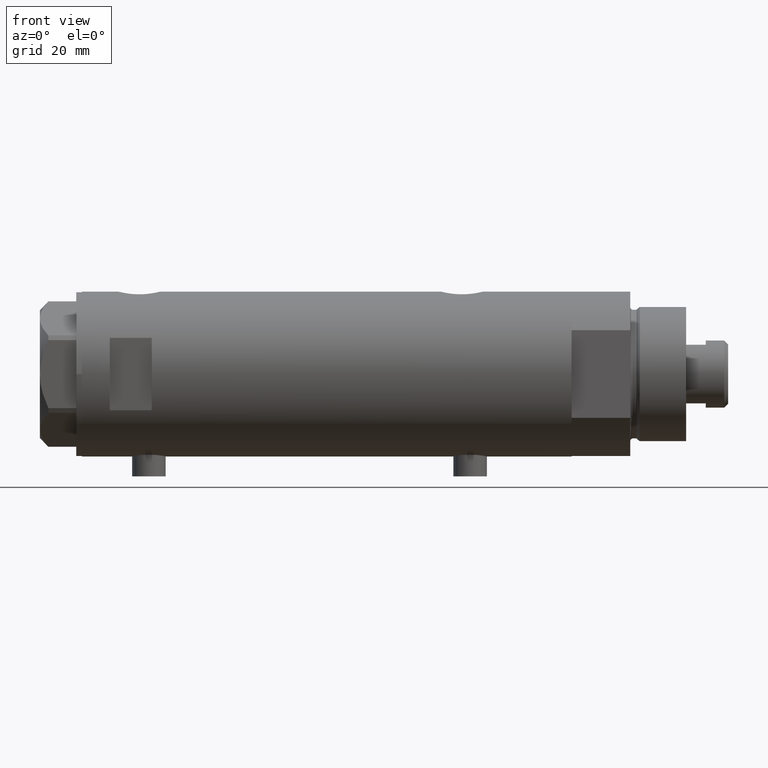
[diagram: clean part render]
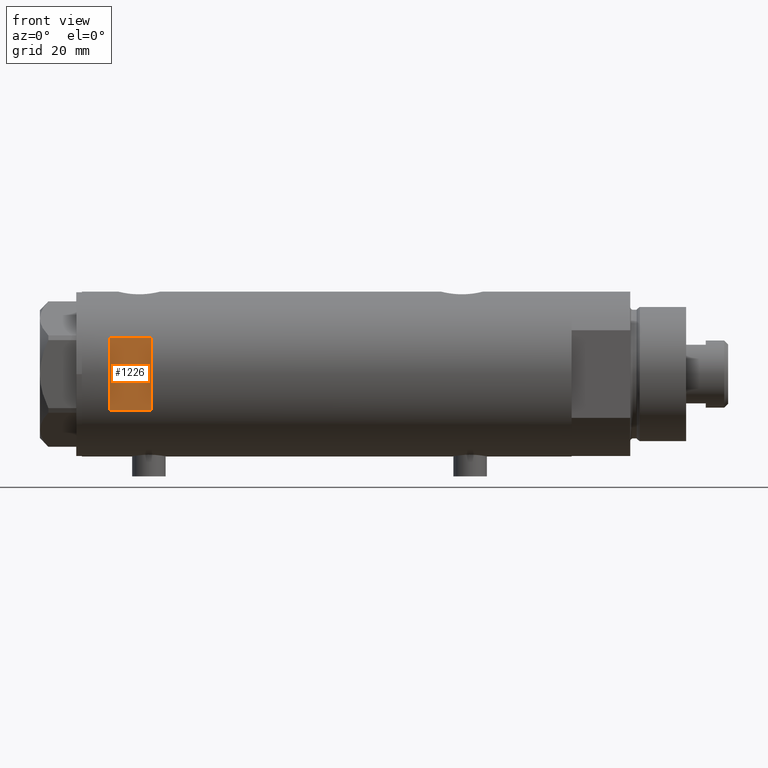
[diagram: same view with one face highlighted and labeled with its STEP entity id]
A machine part, front view. The second image highlights one B-rep face of the part: STEP entity #1226.
In plain terms, the highlighted planar face has unit normal (-0, 1, 0).
Its self-contained STEP definition (entity closure, byte-faithful):
#28 = ORIENTED_EDGE ( 'NONE', *, *, #4003, .T. ) ;
#686 = VECTOR ( 'NONE', #760, 1000.000000000000000 ) ;
#760 = DIRECTION ( 'NONE',  ( 1.000000000000000000, -0.000000000000000000, -0.000000000000000000 ) ) ;
#1001 = LINE ( 'NONE', #3743, #3986 ) ;
#1045 = DIRECTION ( 'NONE',  ( -0.000000000000000000, -0.000000000000000000, -1.000000000000000000 ) ) ;
#1226 = ADVANCED_FACE ( 'NONE', ( #2721 ), #1680, .F. ) ;
#1248 = EDGE_CURVE ( 'NONE', #2840, #2233, #1001, .T. ) ;
#1468 = VERTEX_POINT ( 'NONE', #1735 ) ;
#1494 = LINE ( 'NONE', #1823, #4150 ) ;
#1680 = PLANE ( 'NONE',  #4342 ) ;
#1735 = CARTESIAN_POINT ( 'NONE',  ( 12.96148139681573319, -26.49999999999998934, 62.59999999999998721 ) ) ;
#1755 = CARTESIAN_POINT ( 'NONE',  ( -29.50000000000000355, -26.50000000000000355, 62.60000000000001563 ) ) ;
#1763 = DIRECTION ( 'NONE',  ( 0.000000000000000000, 0.000000000000000000, 1.000000000000000000 ) ) ;
#1819 = EDGE_CURVE ( 'NONE', #2840, #2095, #4394, .T. ) ;
#1823 = CARTESIAN_POINT ( 'NONE',  ( 12.96148139681573319, -26.49999999999999645, -87.59999999999999432 ) ) ;
#1882 = CARTESIAN_POINT ( 'NONE',  ( -12.96148139681573319, -26.49999999999998934, 62.59999999999998721 ) ) ;
#2095 = VERTEX_POINT ( 'NONE', #1882 ) ;
#2233 = VERTEX_POINT ( 'NONE', #4187 ) ;
#2272 = VECTOR ( 'NONE', #1045, 1000.000000000000000 ) ;
#2629 = EDGE_LOOP ( 'NONE', ( #3839, #4151, #28, #4039 ) ) ;
#2721 = FACE_OUTER_BOUND ( 'NONE', #2629, .T. ) ;
#2840 = VERTEX_POINT ( 'NONE', #3908 ) ;
#3055 = EDGE_CURVE ( 'NONE', #2095, #1468, #3838, .T. ) ;
#3743 = CARTESIAN_POINT ( 'NONE',  ( -29.50000000000000355, -26.50000000000000355, 77.60000000000002274 ) ) ;
#3766 = DIRECTION ( 'NONE',  ( 0.000000000000000000, 1.000000000000000000, 0.000000000000000000 ) ) ;
#3790 = CARTESIAN_POINT ( 'NONE',  ( -29.50000000000000355, -26.50000000000000355, 77.60000000000002274 ) ) ;
#3792 = CARTESIAN_POINT ( 'NONE',  ( -12.96148139681573319, -26.49999999999999645, -87.59999999999999432 ) ) ;
#3830 = DIRECTION ( 'NONE',  ( 0.000000000000000000, -0.000000000000000000, 1.000000000000000000 ) ) ;
#3838 = LINE ( 'NONE', #1755, #686 ) ;
#3839 = ORIENTED_EDGE ( 'NONE', *, *, #1819, .T. ) ;
#3908 = CARTESIAN_POINT ( 'NONE',  ( -12.96148139681573319, -26.49999999999998934, 77.60000000000002274 ) ) ;
#3986 = VECTOR ( 'NONE', #4443, 1000.000000000000000 ) ;
#4003 = EDGE_CURVE ( 'NONE', #1468, #2233, #1494, .T. ) ;
#4039 = ORIENTED_EDGE ( 'NONE', *, *, #1248, .F. ) ;
#4150 = VECTOR ( 'NONE', #1763, 1000.000000000000000 ) ;
#4151 = ORIENTED_EDGE ( 'NONE', *, *, #3055, .T. ) ;
#4187 = CARTESIAN_POINT ( 'NONE',  ( 12.96148139681573319, -26.49999999999998934, 77.60000000000002274 ) ) ;
#4342 = AXIS2_PLACEMENT_3D ( 'NONE', #3790, #3766, #3830 ) ;
#4394 = LINE ( 'NONE', #3792, #2272 ) ;
#4443 = DIRECTION ( 'NONE',  ( 1.000000000000000000, -0.000000000000000000, -0.000000000000000000 ) ) ;